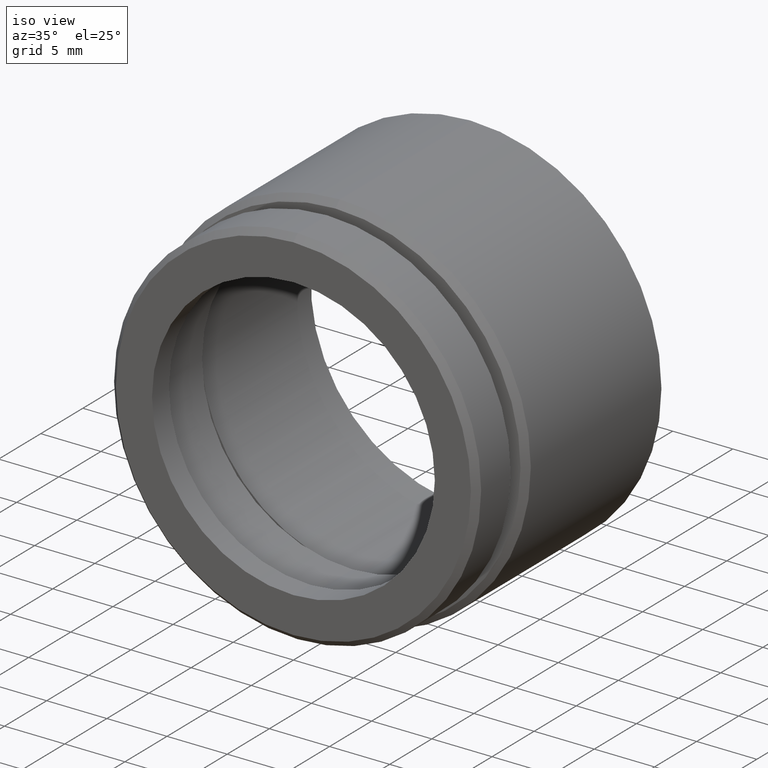
[diagram: clean part render]
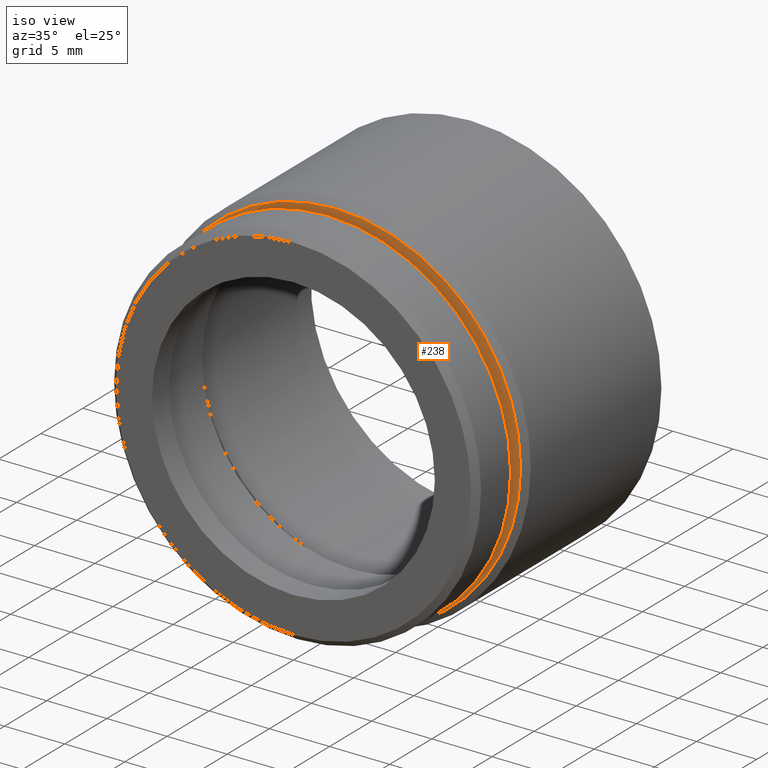
[diagram: same view with one face highlighted and labeled with its STEP entity id]
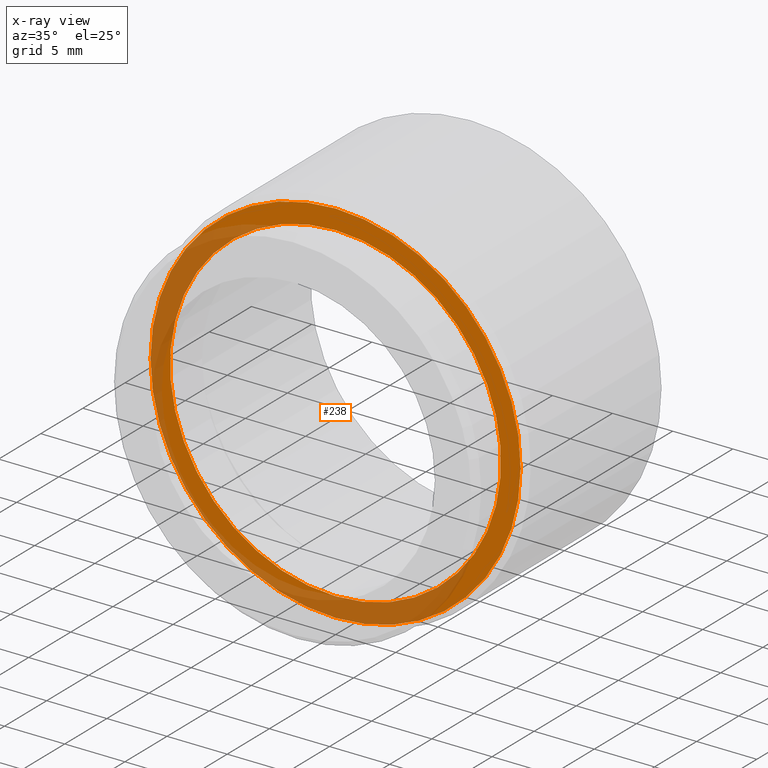
[diagram: x-ray of the same camera — body ghosted, the highlighted face saturated]
A machine part, iso view. The second image highlights one B-rep face of the part: STEP entity #238.
The next image is the same camera in x-ray: the body ghosted, the highlighted face saturated — about 36% of this face is hidden behind the body in this view.
In plain terms, the highlighted planar face has unit normal (0, -1, -0).
Its self-contained STEP definition (entity closure, byte-faithful):
#1 = VERTEX_POINT ( 'NONE', #33 ) ;
#3 = EDGE_LOOP ( 'NONE', ( #775, #648 ) ) ;
#33 = CARTESIAN_POINT ( 'NONE',  ( 0.0000000000000000000, 5.000000000000000000, 15.37499999999999300 ) ) ;
#74 = AXIS2_PLACEMENT_3D ( 'NONE', #564, #380, #99 ) ;
#99 = DIRECTION ( 'NONE',  ( 0.0000000000000000000, 0.0000000000000000000, -1.000000000000000000 ) ) ;
#140 = DIRECTION ( 'NONE',  ( -0.0000000000000000000, -1.000000000000000000, -0.0000000000000000000 ) ) ;
#168 = CARTESIAN_POINT ( 'NONE',  ( 0.0000000000000000000, 5.000000000000000000, 0.0000000000000000000 ) ) ;
#169 = DIRECTION ( 'NONE',  ( 0.0000000000000000000, 0.0000000000000000000, -1.000000000000000000 ) ) ;
#190 = AXIS2_PLACEMENT_3D ( 'NONE', #407, #623, #628 ) ;
#198 = CARTESIAN_POINT ( 'NONE',  ( 0.0000000000000000000, 5.000000000000000000, -13.75000000000000000 ) ) ;
#238 = ADVANCED_FACE ( 'NONE', ( #332, #861 ), #855, .T. ) ;
#317 = DIRECTION ( 'NONE',  ( 0.0000000000000000000, 0.0000000000000000000, -1.000000000000000000 ) ) ;
#331 = EDGE_CURVE ( 'NONE', #647, #418, #714, .T. ) ;
#332 = FACE_OUTER_BOUND ( 'NONE', #565, .T. ) ;
#376 = VERTEX_POINT ( 'NONE', #512 ) ;
#380 = DIRECTION ( 'NONE',  ( -0.0000000000000000000, -1.000000000000000000, -0.0000000000000000000 ) ) ;
#407 = CARTESIAN_POINT ( 'NONE',  ( 13.75000000000000000, 5.000000000000000000, 0.0000000000000000000 ) ) ;
#418 = VERTEX_POINT ( 'NONE', #441 ) ;
#438 = EDGE_CURVE ( 'NONE', #418, #647, #502, .T. ) ;
#441 = CARTESIAN_POINT ( 'NONE',  ( 1.683889348827610700E-015, 5.000000000000000000, 13.75000000000000000 ) ) ;
#445 = DIRECTION ( 'NONE',  ( -0.0000000000000000000, -1.000000000000000000, -0.0000000000000000000 ) ) ;
#475 = EDGE_CURVE ( 'NONE', #1, #376, #831, .T. ) ;
#502 = CIRCLE ( 'NONE', #596, 13.75000000000000000 ) ;
#512 = CARTESIAN_POINT ( 'NONE',  ( 1.913510623667739100E-015, 5.000000000000000000, -15.37499999999999300 ) ) ;
#530 = CARTESIAN_POINT ( 'NONE',  ( 0.0000000000000000000, 5.000000000000000000, 0.0000000000000000000 ) ) ;
#537 = AXIS2_PLACEMENT_3D ( 'NONE', #796, #594, #317 ) ;
#564 = CARTESIAN_POINT ( 'NONE',  ( 0.0000000000000000000, 5.000000000000000000, 0.0000000000000000000 ) ) ;
#565 = EDGE_LOOP ( 'NONE', ( #738, #681 ) ) ;
#575 = CIRCLE ( 'NONE', #74, 15.37499999999999300 ) ;
#576 = DIRECTION ( 'NONE',  ( 0.0000000000000000000, 0.0000000000000000000, -1.000000000000000000 ) ) ;
#594 = DIRECTION ( 'NONE',  ( -0.0000000000000000000, -1.000000000000000000, -0.0000000000000000000 ) ) ;
#596 = AXIS2_PLACEMENT_3D ( 'NONE', #168, #140, #169 ) ;
#623 = DIRECTION ( 'NONE',  ( 0.0000000000000000000, -1.000000000000000000, -0.0000000000000000000 ) ) ;
#628 = DIRECTION ( 'NONE',  ( 0.0000000000000000000, 0.0000000000000000000, -1.000000000000000000 ) ) ;
#647 = VERTEX_POINT ( 'NONE', #198 ) ;
#648 = ORIENTED_EDGE ( 'NONE', *, *, #438, .F. ) ;
#681 = ORIENTED_EDGE ( 'NONE', *, *, #706, .T. ) ;
#698 = AXIS2_PLACEMENT_3D ( 'NONE', #530, #445, #576 ) ;
#706 = EDGE_CURVE ( 'NONE', #376, #1, #575, .T. ) ;
#714 = CIRCLE ( 'NONE', #698, 13.75000000000000000 ) ;
#738 = ORIENTED_EDGE ( 'NONE', *, *, #475, .T. ) ;
#775 = ORIENTED_EDGE ( 'NONE', *, *, #331, .F. ) ;
#796 = CARTESIAN_POINT ( 'NONE',  ( 0.0000000000000000000, 5.000000000000000000, 0.0000000000000000000 ) ) ;
#831 = CIRCLE ( 'NONE', #537, 15.37499999999999300 ) ;
#855 = PLANE ( 'NONE',  #190 ) ;
#861 = FACE_BOUND ( 'NONE', #3, .T. ) ;